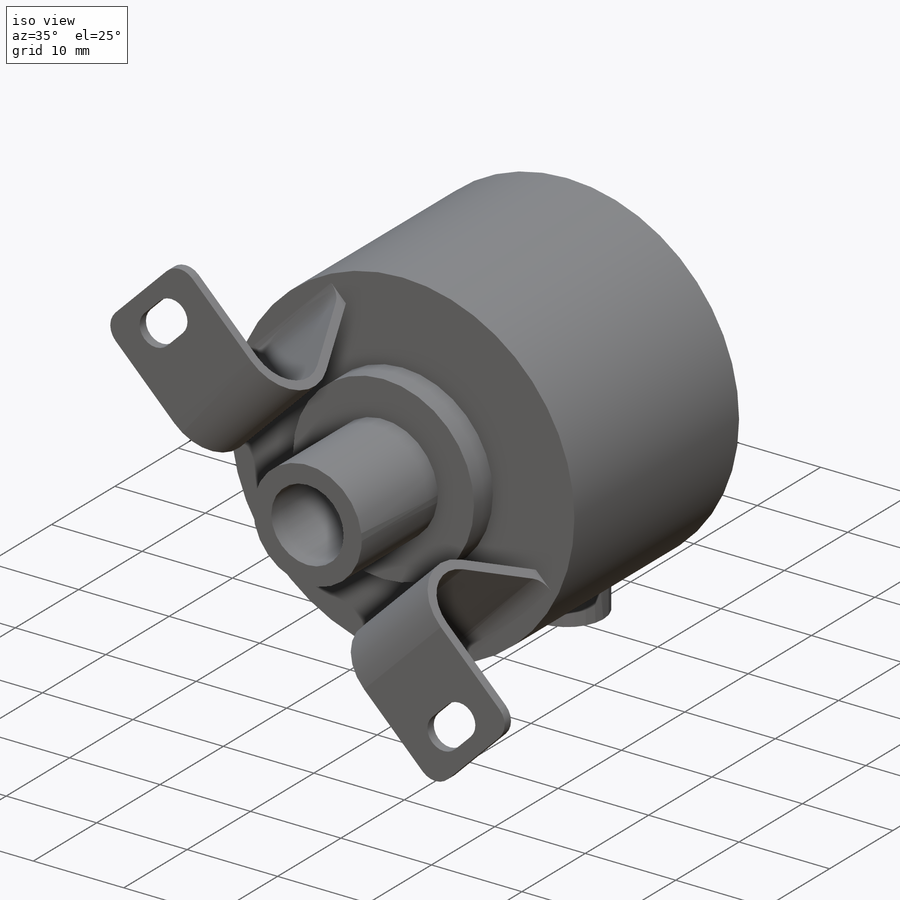
[diagram: iso view]
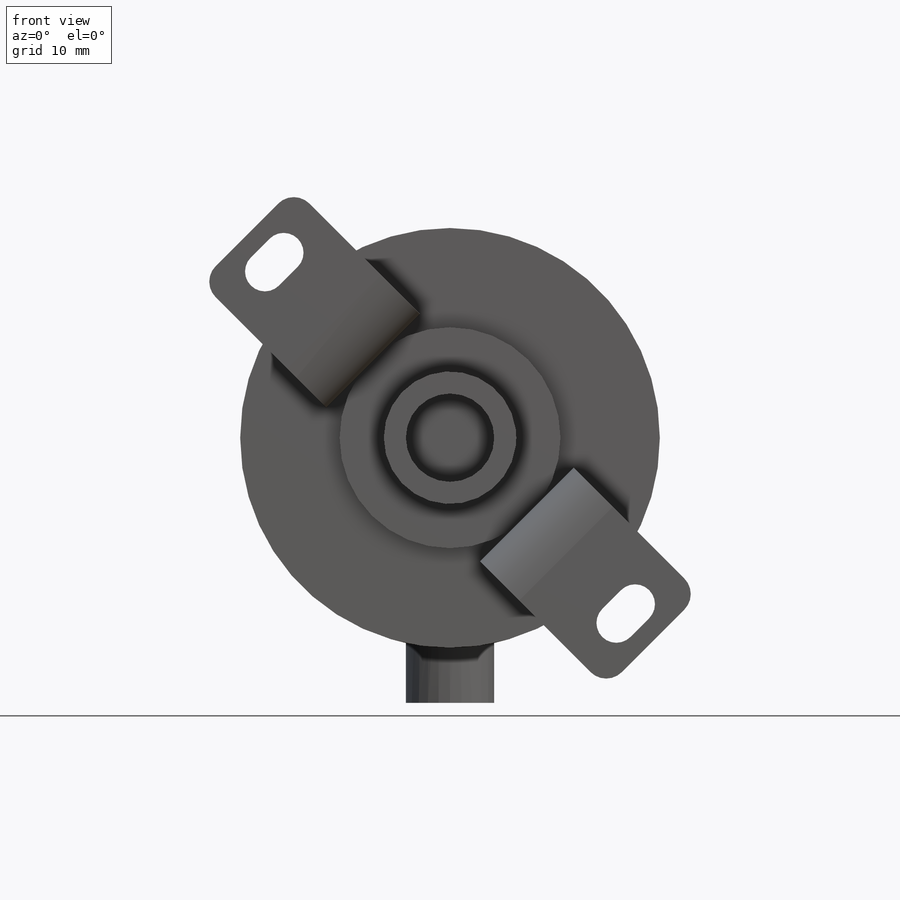
[diagram: front view]
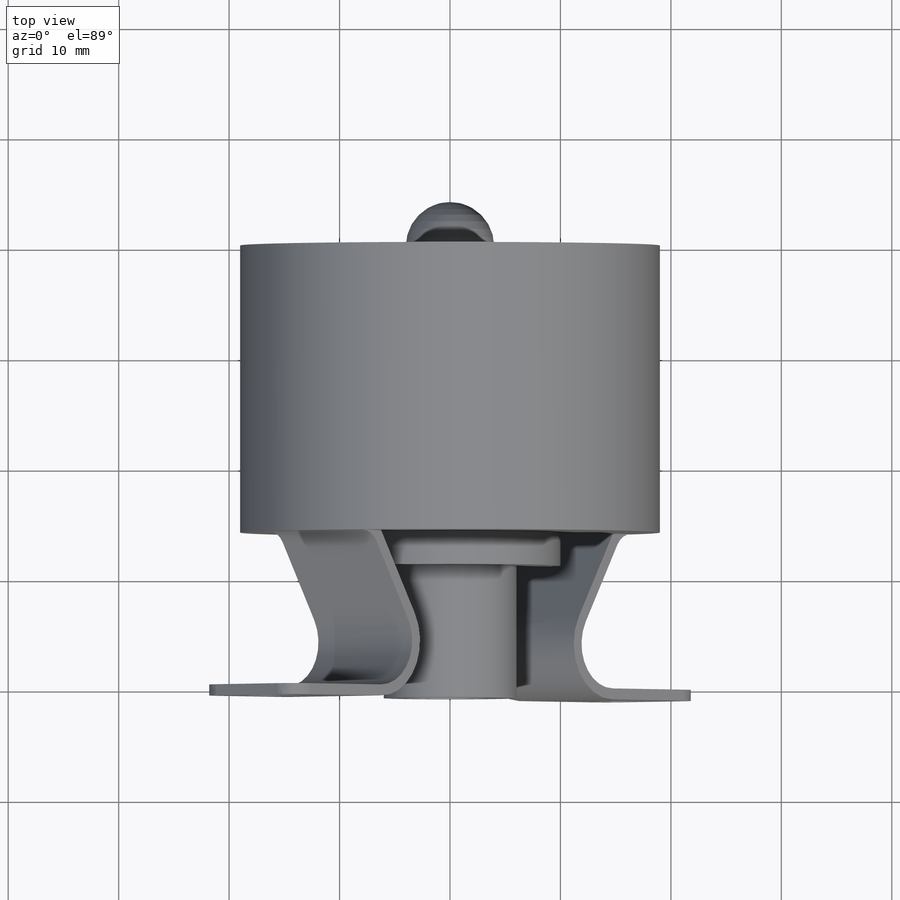
[diagram: top view]
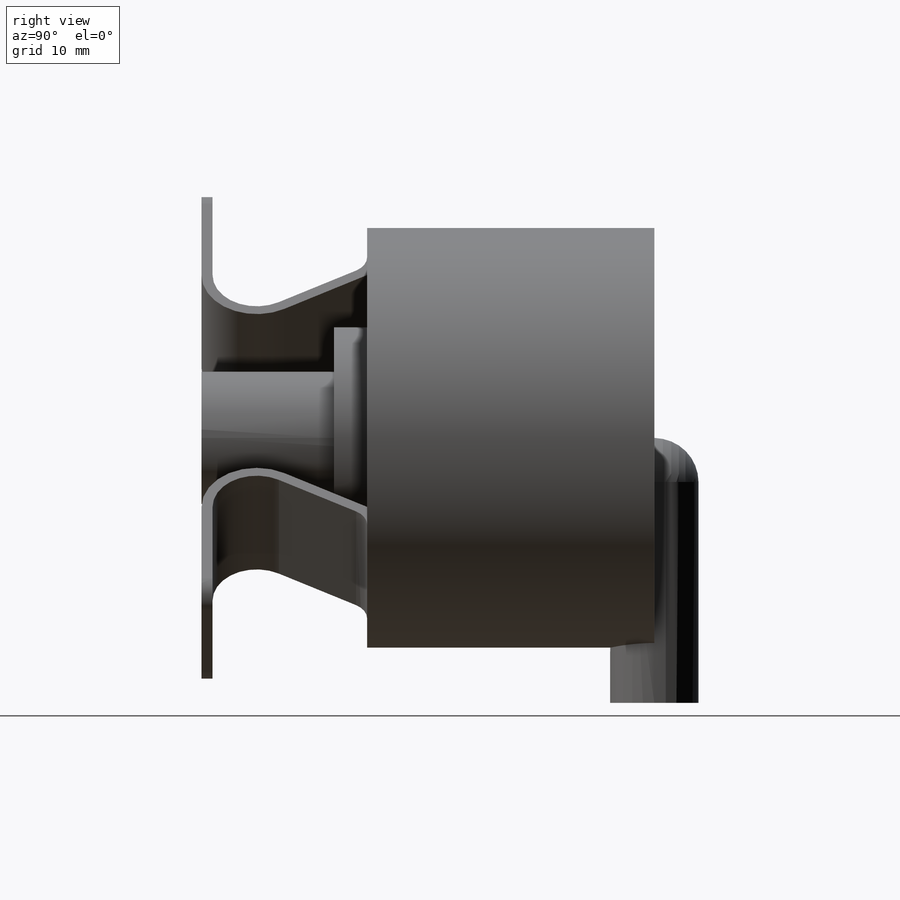
[diagram: right view]
SOLIDWORKS PART (.sldprt)
format: sldprt  version: not decoded by parser v0  size: 289,280 bytes
history: native  units: mm
features: sketch x7, extrude x5, fillet x3, cut_extrude x2, material x1, plane x1 (+16 scaffold rows collapsed)
feature tree (35):
  scaffold x16  (default folders/planes/origin — collapsed)
  material  "Material <not specified>"
  sketch  "Sketch1"  dims[D1=38.0mm]
  extrude  "Boss-Extrude1"  Depth=26mm
  sketch  "Sketch2"  dims[D1=20.0mm]
  extrude  "Boss-Extrude2"  Depth=3mm
  sketch  "Sketch3"  dims[D1=12.0mm]
  extrude  "Boss-Extrude3"  Depth=12mm
  sketch  "Sketch4"  dims[D1=8.0mm]
  cut_extrude  "Cut-Extrude1"  Depth=10mm
  sketch  "Sketch5"  dims[D1=8.0mm]
  extrude  "Boss-Extrude4"  Depth=24mm
  fillet  "Fillet1"  Radius=4mm
  plane  "Plane1"
  sketch  "Sketch6"  dims[c1.D3=5.0mm c1.D1=26.0mm c1.D2=15.0mm c1.D5=~8.734838mm c2.D5=60.0deg c2.D6=3.0mm c2.D4=1.0mm]
  extrude  "Boss-Extrude5"  Depth=12mm
  sketch  "Sketch7"  dims[D1=3.6mm D2=6.0mm D3=22.5mm]
  cut_extrude  "Cut-Extrude2"  [1 undecoded]
  fillet  "Fillet2"  Radius=2mm
  fillet  "Fillet3"  Radius=2mm
decode coverage: 16 of 17 modeling features carry decoded parameters
note: ~ marks probable driven/reference dimensions
note: 1 parameter value undecoded
note: suppression state not decoded; provenance and decode notes live in map.json
